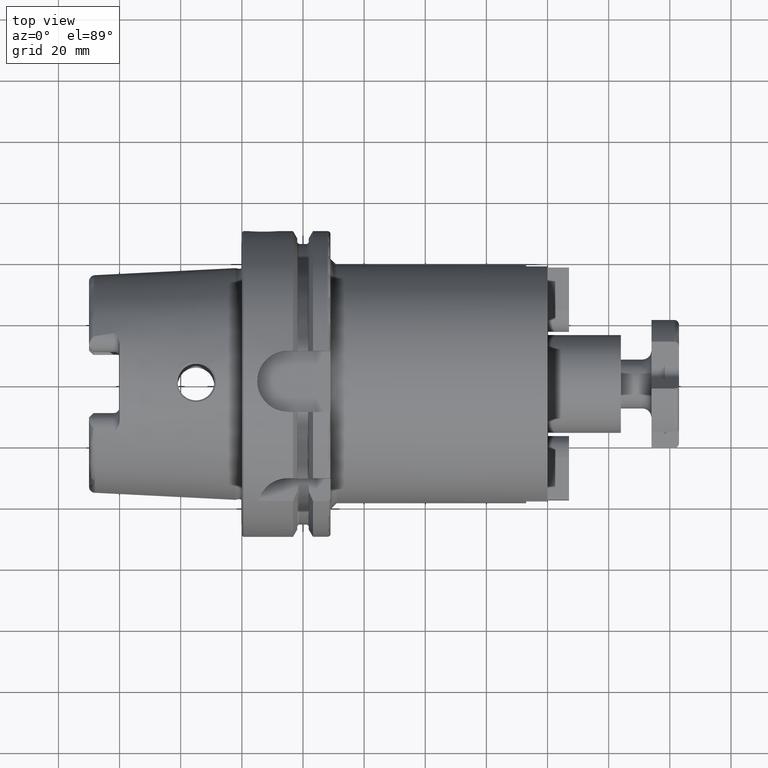
[diagram: clean part render]
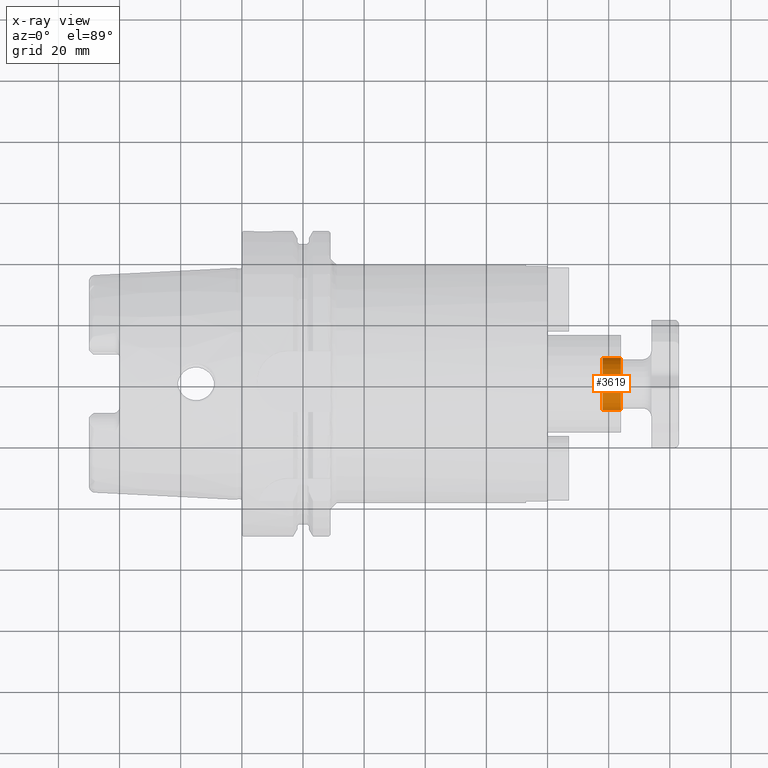
[diagram: x-ray — body ghosted, one internal face saturated and labeled with its STEP entity id]
A machine part, top view, then the same camera in x-ray: the body is ghosted and one INTERNAL B-rep face — a face not visible from any outside direction — is saturated and labeled: STEP entity #3619.
In plain terms, the highlighted cylindrical surface (bore or boss wall) has radius 8.5 mm, axis along (1, 0, 0).
Its self-contained STEP definition (entity closure, byte-faithful):
#799=CYLINDRICAL_SURFACE('',#3999,8.5);
#873=FACE_OUTER_BOUND('',#1065,.T.);
#1065=EDGE_LOOP('',(#2765,#2766,#2767,#2768));
#1274=LINE('',#5698,#1466);
#1466=VECTOR('',#4578,8.5);
#1652=CIRCLE('',#3998,8.5);
#1653=CIRCLE('',#4000,8.5);
#1899=VERTEX_POINT('',#5694);
#1900=VERTEX_POINT('',#5697);
#2230=EDGE_CURVE('',#1899,#1899,#1652,.T.);
#2231=EDGE_CURVE('',#1899,#1900,#1274,.T.);
#2232=EDGE_CURVE('',#1900,#1900,#1653,.T.);
#2765=ORIENTED_EDGE('',*,*,#2230,.T.);
#2766=ORIENTED_EDGE('',*,*,#2231,.T.);
#2767=ORIENTED_EDGE('',*,*,#2232,.F.);
#2768=ORIENTED_EDGE('',*,*,#2231,.F.);
#3619=ADVANCED_FACE('',(#873),#799,.F.);
#3998=AXIS2_PLACEMENT_3D('',#5695,#4574,#4575);
#3999=AXIS2_PLACEMENT_3D('',#5696,#4576,#4577);
#4000=AXIS2_PLACEMENT_3D('',#5699,#4579,#4580);
#4574=DIRECTION('center_axis',(1.,0.,0.));
#4575=DIRECTION('ref_axis',(0.,0.,-1.));
#4576=DIRECTION('center_axis',(1.,0.,0.));
#4577=DIRECTION('ref_axis',(0.,1.,0.));
#4578=DIRECTION('',(-1.,0.,0.));
#4579=DIRECTION('center_axis',(1.,0.,0.));
#4580=DIRECTION('ref_axis',(0.,0.,-1.));
#5694=CARTESIAN_POINT('',(124.,-8.5,-1.04094977927525E-15));
#5695=CARTESIAN_POINT('Origin',(124.,0.,0.));
#5696=CARTESIAN_POINT('Origin',(121.,0.,0.));
#5697=CARTESIAN_POINT('',(118.,-8.5,-1.04094977927525E-15));
#5698=CARTESIAN_POINT('',(121.,-8.5,-1.04094977927525E-15));
#5699=CARTESIAN_POINT('Origin',(118.,0.,0.));